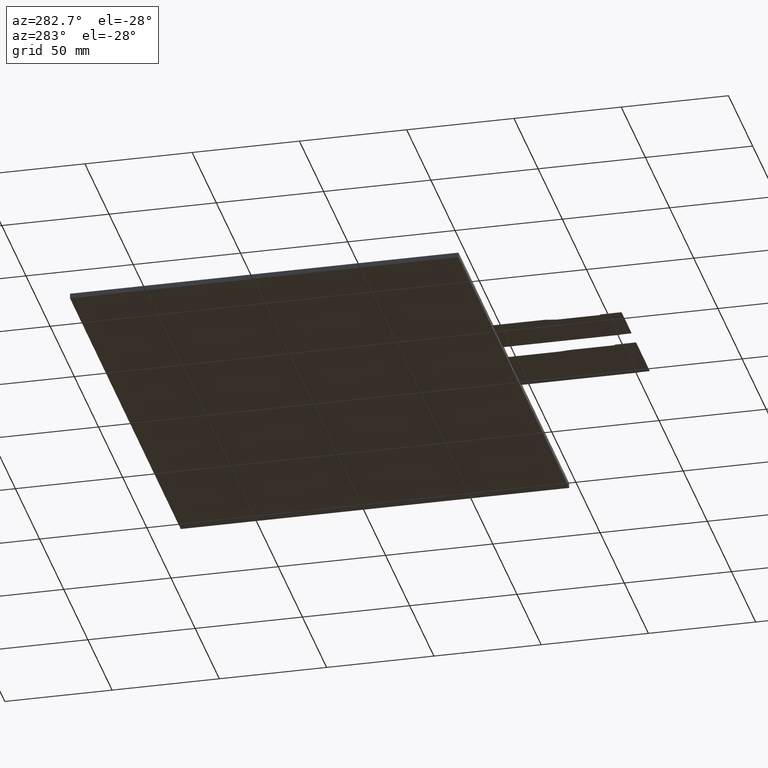
[diagram: clean part render]
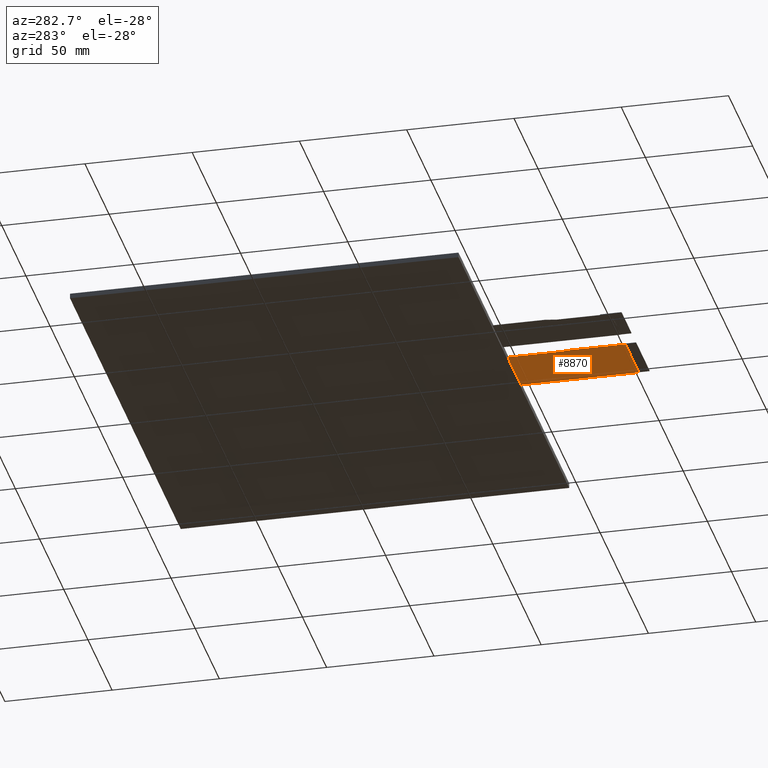
[diagram: same view with one face highlighted and labeled with its STEP entity id]
A machine part, auxiliary view. The second image highlights one B-rep face of the part: STEP entity #8870.
In plain terms, the highlighted planar face has unit normal (0, 0, -1).
Its self-contained STEP definition (entity closure, byte-faithful):
#532=PLANE('',#9320);
#954=FACE_OUTER_BOUND('',#1376,.T.);
#1376=EDGE_LOOP('',(#8357,#8358,#8359,#8360,#8361,#8362));
#1801=LINE('',#12264,#3041);
#2580=LINE('',#13821,#3820);
#2585=LINE('',#13831,#3825);
#2592=LINE('',#13847,#3832);
#2595=LINE('',#13851,#3835);
#2597=LINE('',#13855,#3837);
#3041=VECTOR('',#9777,10.);
#3820=VECTOR('',#11326,10.);
#3825=VECTOR('',#11333,10.);
#3832=VECTOR('',#11348,10.);
#3835=VECTOR('',#11353,10.);
#3837=VECTOR('',#11359,10.);
#4290=VERTEX_POINT('',#12261);
#4291=VERTEX_POINT('',#12263);
#4684=VERTEX_POINT('',#13819);
#4688=VERTEX_POINT('',#13829);
#4692=VERTEX_POINT('',#13844);
#4693=VERTEX_POINT('',#13846);
#5129=EDGE_CURVE('',#4291,#4290,#1801,.T.);
#5908=EDGE_CURVE('',#4290,#4684,#2580,.T.);
#5913=EDGE_CURVE('',#4684,#4688,#2585,.T.);
#5920=EDGE_CURVE('',#4693,#4692,#2592,.T.);
#5923=EDGE_CURVE('',#4688,#4693,#2595,.T.);
#5925=EDGE_CURVE('',#4291,#4692,#2597,.T.);
#8357=ORIENTED_EDGE('',*,*,#5908,.T.);
#8358=ORIENTED_EDGE('',*,*,#5913,.T.);
#8359=ORIENTED_EDGE('',*,*,#5923,.T.);
#8360=ORIENTED_EDGE('',*,*,#5920,.T.);
#8361=ORIENTED_EDGE('',*,*,#5925,.F.);
#8362=ORIENTED_EDGE('',*,*,#5129,.T.);
#8870=ADVANCED_FACE('',(#954),#532,.T.);
#9320=AXIS2_PLACEMENT_3D('',#13854,#11357,#11358);
#9777=DIRECTION('',(-1.77635683940025E-15,-1.,0.));
#11326=DIRECTION('',(-1.,0.,0.));
#11333=DIRECTION('',(1.4704940723512E-16,1.,0.));
#11348=DIRECTION('',(-1.8503717077086E-16,1.,0.));
#11353=DIRECTION('',(0.0858883421530299,0.996304768974938,0.));
#11357=DIRECTION('center_axis',(0.,0.,-1.));
#11358=DIRECTION('ref_axis',(-1.,0.,0.));
#11359=DIRECTION('',(-1.,-1.55072618018354E-16,0.));
#12261=CARTESIAN_POINT('',(13.8,-148.8,-1.2));
#12263=CARTESIAN_POINT('',(13.8000000000001,-93.8,-1.2));
#12264=CARTESIAN_POINT('',(13.8,-153.8,-1.2));
#13819=CARTESIAN_POINT('',(-14.2,-148.8,-1.2));
#13821=CARTESIAN_POINT('',(6.80000000000001,-148.8,-1.2));
#13829=CARTESIAN_POINT('',(-14.2,-123.6,-1.2));
#13831=CARTESIAN_POINT('',(-14.2,-123.6,-1.2));
#13844=CARTESIAN_POINT('',(-13.6999999999999,-93.8,-1.2));
#13846=CARTESIAN_POINT('',(-13.6999999999999,-117.8,-1.2));
#13847=CARTESIAN_POINT('',(-13.6999999999999,-93.8,-1.2));
#13851=CARTESIAN_POINT('',(-13.6999999999999,-117.8,-1.2));
#13854=CARTESIAN_POINT('Origin',(-0.199999999999958,-123.8,-1.2));
#13855=CARTESIAN_POINT('',(56.8,-93.8,-1.2));